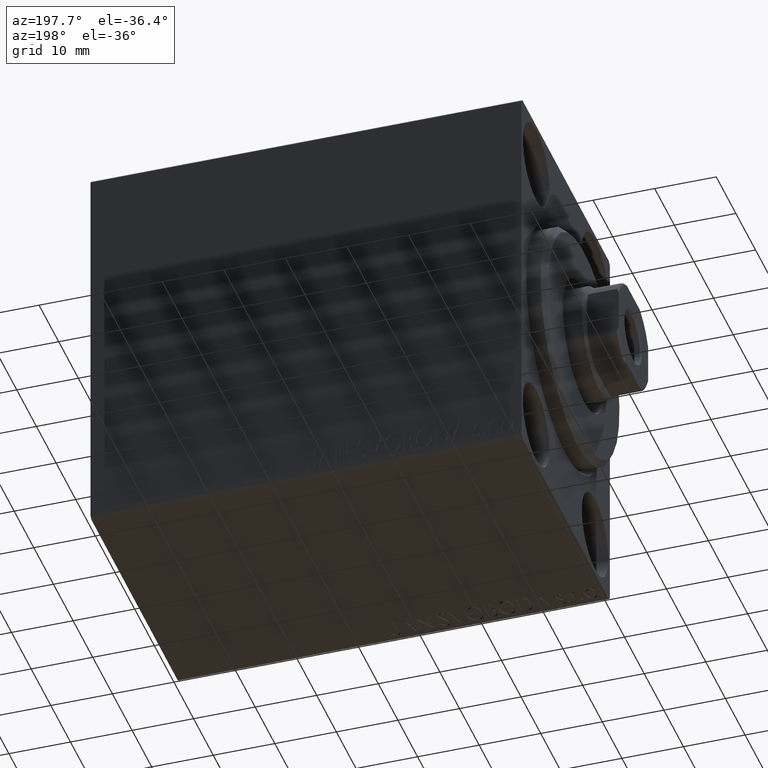
[diagram: clean part render]
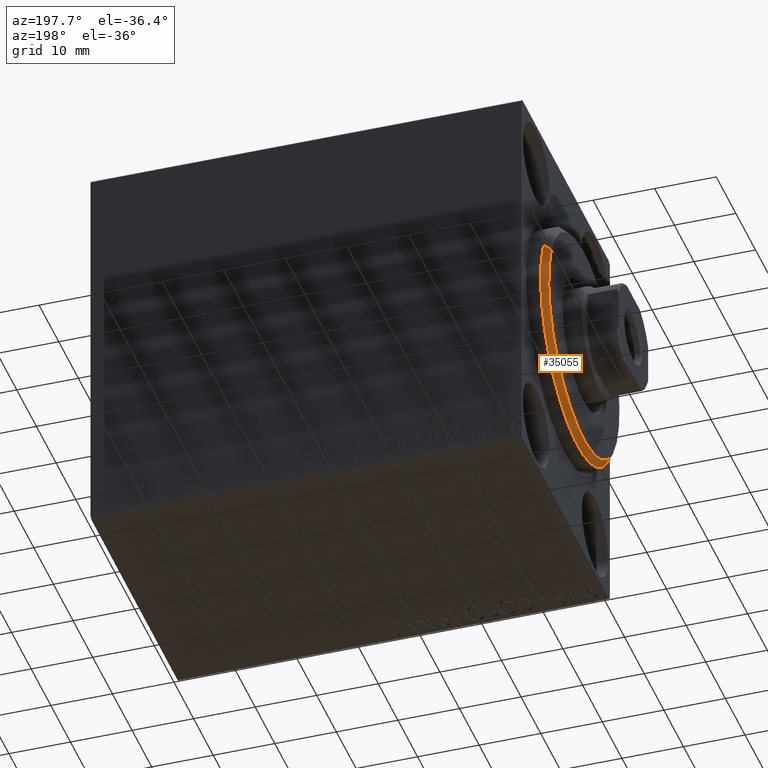
[diagram: same view with one face highlighted and labeled with its STEP entity id]
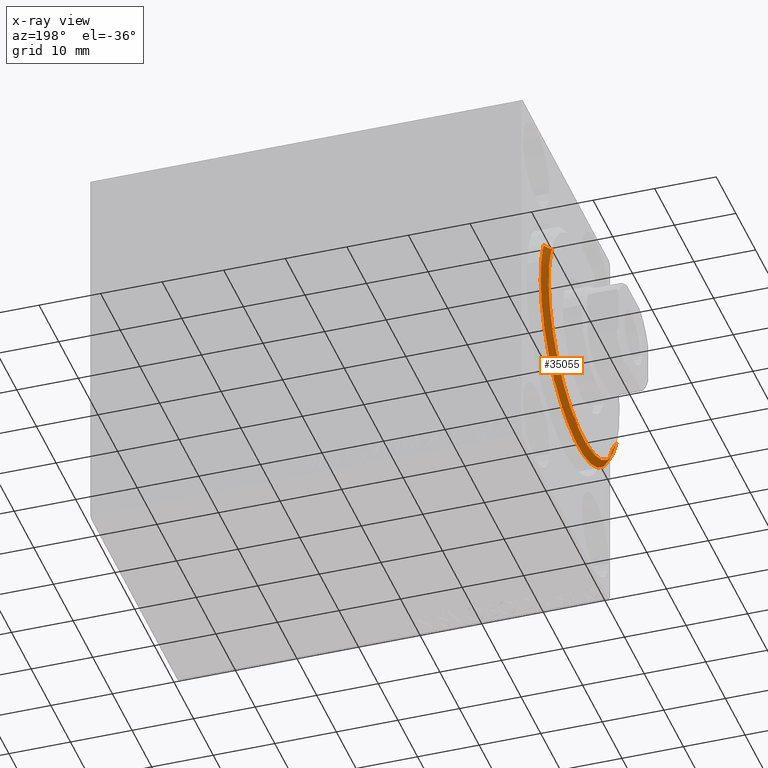
[diagram: x-ray of the same camera — body ghosted, the highlighted face saturated]
A machine part, auxiliary view. The second image highlights one B-rep face of the part: STEP entity #35055.
The next image is the same camera in x-ray: the body ghosted, the highlighted face saturated — about 0% of this face is hidden behind the body in this view.
In plain terms, the highlighted conical surface has half-angle 45 deg.
Its self-contained STEP definition (entity closure, byte-faithful):
#830 = EDGE_CURVE ( 'NONE', #23826, #2745, #13312, .T. ) ;
#1065 = CARTESIAN_POINT ( 'NONE',  ( 1.999999999999992228, 0.000000000000000000, 0.000000000000000000 ) ) ;
#1926 = CARTESIAN_POINT ( 'NONE',  ( 1.999999999999992228, 2.326828918379970970E-15, -19.00000000000000000 ) ) ;
#2719 = AXIS2_PLACEMENT_3D ( 'NONE', #1065, #10822, #38290 ) ;
#2745 = VERTEX_POINT ( 'NONE', #28708 ) ;
#3948 = FACE_OUTER_BOUND ( 'NONE', #27048, .T. ) ;
#5441 = DIRECTION ( 'NONE',  ( 0.000000000000000000, 0.000000000000000000, 1.000000000000000000 ) ) ;
#10822 = DIRECTION ( 'NONE',  ( -1.000000000000000000, 0.000000000000000000, 0.000000000000000000 ) ) ;
#11736 = ORIENTED_EDGE ( 'NONE', *, *, #29906, .F. ) ;
#11946 = AXIS2_PLACEMENT_3D ( 'NONE', #17977, #20860, #17320 ) ;
#13312 = LINE ( 'NONE', #15795, #39570 ) ;
#14141 = CARTESIAN_POINT ( 'NONE',  ( 3.000000000000000000, 0.000000000000000000, 0.000000000000000000 ) ) ;
#15411 = DIRECTION ( 'NONE',  ( -1.000000000000000000, 0.000000000000000000, 0.000000000000000000 ) ) ;
#15795 = CARTESIAN_POINT ( 'NONE',  ( 3.000000000000000000, 0.000000000000000000, 17.99999999999999645 ) ) ;
#17320 = DIRECTION ( 'NONE',  ( 0.000000000000000000, 0.000000000000000000, -1.000000000000000000 ) ) ;
#17509 = ORIENTED_EDGE ( 'NONE', *, *, #31762, .F. ) ;
#17977 = CARTESIAN_POINT ( 'NONE',  ( 3.000000000000000000, 0.000000000000000000, 0.000000000000000000 ) ) ;
#18348 = AXIS2_PLACEMENT_3D ( 'NONE', #14141, #15411, #5441 ) ;
#19328 = DIRECTION ( 'NONE',  ( -0.7071067811865487940, 0.000000000000000000, 0.7071067811865463515 ) ) ;
#20318 = CARTESIAN_POINT ( 'NONE',  ( 3.000000000000000000, 2.265596578422603002E-15, -17.99999999999999645 ) ) ;
#20860 = DIRECTION ( 'NONE',  ( 1.000000000000000000, -0.000000000000000000, 0.000000000000000000 ) ) ;
#21097 = CIRCLE ( 'NONE', #11946, 17.99999999999999645 ) ;
#23826 = VERTEX_POINT ( 'NONE', #39952 ) ;
#27048 = EDGE_LOOP ( 'NONE', ( #17509, #29519, #11736, #39366 ) ) ;
#27878 = CARTESIAN_POINT ( 'NONE',  ( 3.000000000000000000, 2.204364238465235033E-15, -17.99999999999999645 ) ) ;
#28708 = CARTESIAN_POINT ( 'NONE',  ( 1.999999999999992228, 0.000000000000000000, 19.00000000000000000 ) ) ;
#29519 = ORIENTED_EDGE ( 'NONE', *, *, #31320, .T. ) ;
#29906 = EDGE_CURVE ( 'NONE', #2745, #36898, #32378, .T. ) ;
#31101 = CONICAL_SURFACE ( 'NONE', #18348, 17.99999999999999645, 0.7853981633974466137 ) ;
#31320 = EDGE_CURVE ( 'NONE', #33870, #36898, #38977, .T. ) ;
#31762 = EDGE_CURVE ( 'NONE', #33870, #23826, #21097, .T. ) ;
#32378 = CIRCLE ( 'NONE', #2719, 19.00000000000000000 ) ;
#33165 = VECTOR ( 'NONE', #42287, 1000.000000000000000 ) ;
#33870 = VERTEX_POINT ( 'NONE', #20318 ) ;
#35055 = ADVANCED_FACE ( 'NONE', ( #3948 ), #31101, .T. ) ;
#36898 = VERTEX_POINT ( 'NONE', #1926 ) ;
#38290 = DIRECTION ( 'NONE',  ( 0.000000000000000000, 0.000000000000000000, -1.000000000000000000 ) ) ;
#38977 = LINE ( 'NONE', #27878, #33165 ) ;
#39366 = ORIENTED_EDGE ( 'NONE', *, *, #830, .F. ) ;
#39570 = VECTOR ( 'NONE', #19328, 1000.000000000000000 ) ;
#39952 = CARTESIAN_POINT ( 'NONE',  ( 3.000000000000000000, 0.000000000000000000, 17.99999999999999645 ) ) ;
#42287 = DIRECTION ( 'NONE',  ( -0.7071067811865487940, 8.659560562354918067E-17, -0.7071067811865463515 ) ) ;